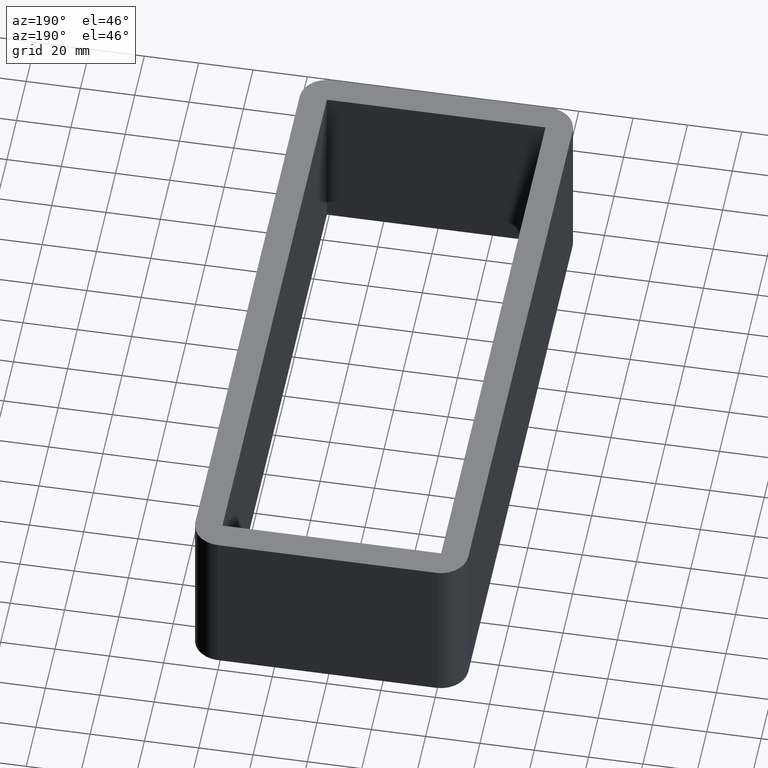
[diagram: clean part render]
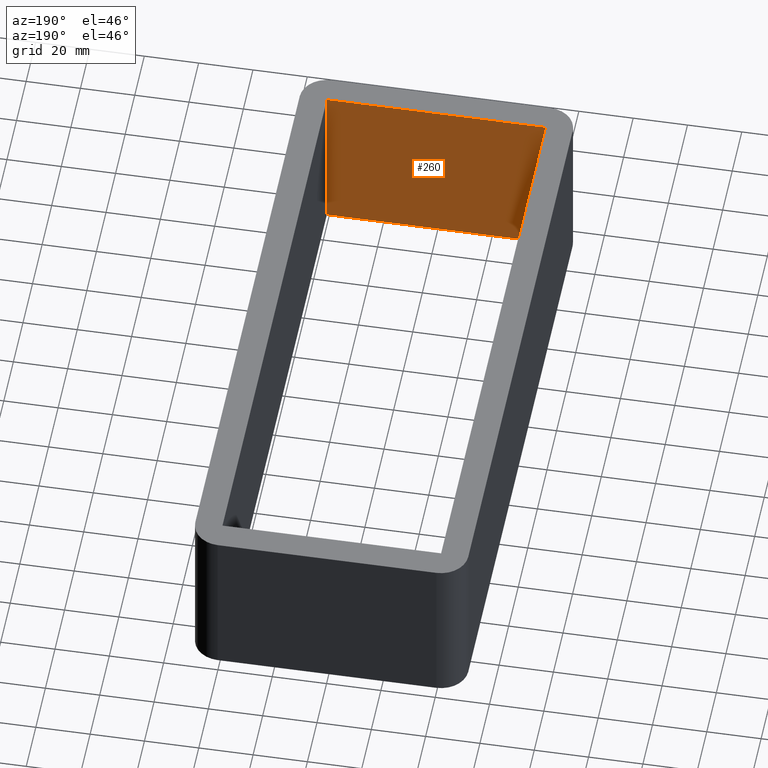
[diagram: same view with one face highlighted and labeled with its STEP entity id]
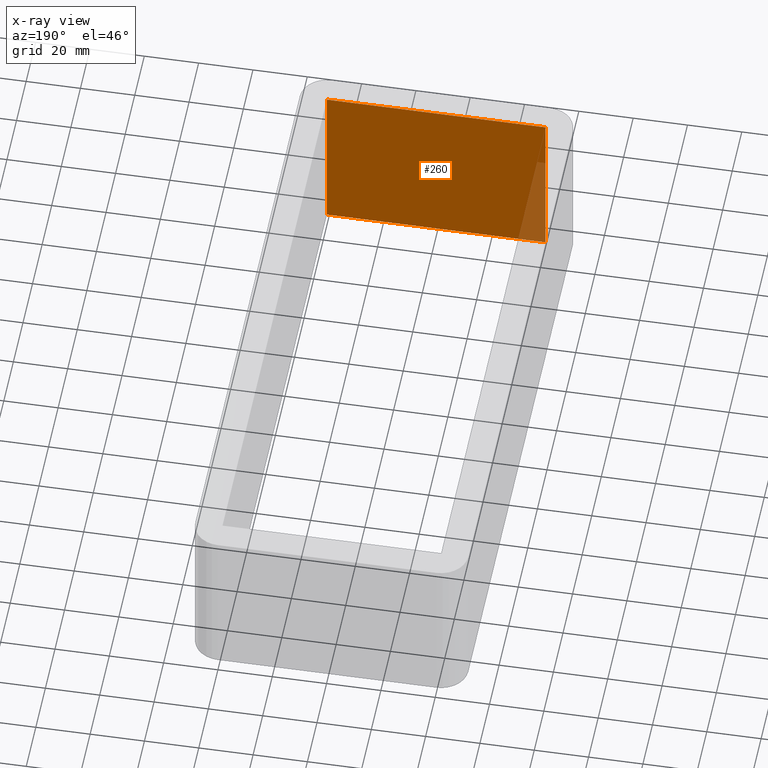
[diagram: x-ray of the same camera — body ghosted, the highlighted face saturated]
A machine part, auxiliary view. The second image highlights one B-rep face of the part: STEP entity #260.
The next image is the same camera in x-ray: the body ghosted, the highlighted face saturated — about 6% of this face is hidden behind the body in this view.
In plain terms, the highlighted planar face has unit normal (0, -1, 0).
Its self-contained STEP definition (entity closure, byte-faithful):
#32=FACE_OUTER_BOUND('',#46,.T.);
#46=EDGE_LOOP('',(#187,#188,#189,#190));
#60=LINE('',#393,#88);
#68=LINE('',#408,#96);
#69=LINE('',#410,#97);
#70=LINE('',#411,#98);
#88=VECTOR('',#318,10.);
#96=VECTOR('',#330,10.);
#97=VECTOR('',#333,10.);
#98=VECTOR('',#334,10.);
#115=VERTEX_POINT('',#389);
#117=VERTEX_POINT('',#392);
#121=VERTEX_POINT('',#404);
#122=VERTEX_POINT('',#406);
#140=EDGE_CURVE('',#117,#115,#60,.T.);
#148=EDGE_CURVE('',#122,#121,#68,.T.);
#149=EDGE_CURVE('',#121,#115,#69,.T.);
#150=EDGE_CURVE('',#117,#122,#70,.T.);
#187=ORIENTED_EDGE('',*,*,#149,.F.);
#188=ORIENTED_EDGE('',*,*,#148,.F.);
#189=ORIENTED_EDGE('',*,*,#150,.F.);
#190=ORIENTED_EDGE('',*,*,#140,.T.);
#250=PLANE('',#294);
#260=ADVANCED_FACE('',(#32),#250,.F.);
#294=AXIS2_PLACEMENT_3D('',#409,#331,#332);
#318=DIRECTION('',(0.,0.,-1.));
#330=DIRECTION('',(0.,0.,-1.));
#331=DIRECTION('center_axis',(4.4133089177646E-16,-1.,0.));
#332=DIRECTION('ref_axis',(-1.,-4.4133089177646E-16,0.));
#333=DIRECTION('',(1.,4.4133089177646E-16,0.));
#334=DIRECTION('',(-1.,-4.4133089177646E-16,0.));
#389=CARTESIAN_POINT('',(40.2500000000036,-109.00000000001,-60.));
#392=CARTESIAN_POINT('',(40.2500000000036,-109.00000000001,0.));
#393=CARTESIAN_POINT('',(40.2500000000036,-109.00000000001,0.));
#404=CARTESIAN_POINT('',(-40.2499999999964,-109.00000000001,-60.));
#406=CARTESIAN_POINT('',(-40.2499999999964,-109.00000000001,0.));
#408=CARTESIAN_POINT('',(-40.2499999999964,-109.00000000001,0.));
#409=CARTESIAN_POINT('Origin',(40.2500000000036,-109.00000000001,0.));
#410=CARTESIAN_POINT('',(20.1250000000018,-109.00000000001,-60.));
#411=CARTESIAN_POINT('',(20.1250000000018,-109.00000000001,0.));